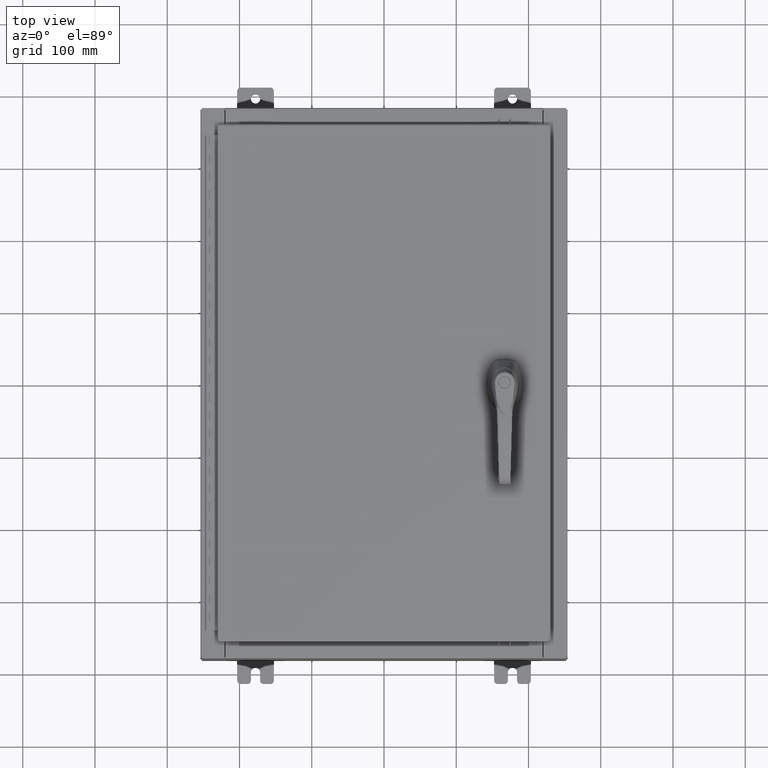
[diagram: clean part render]
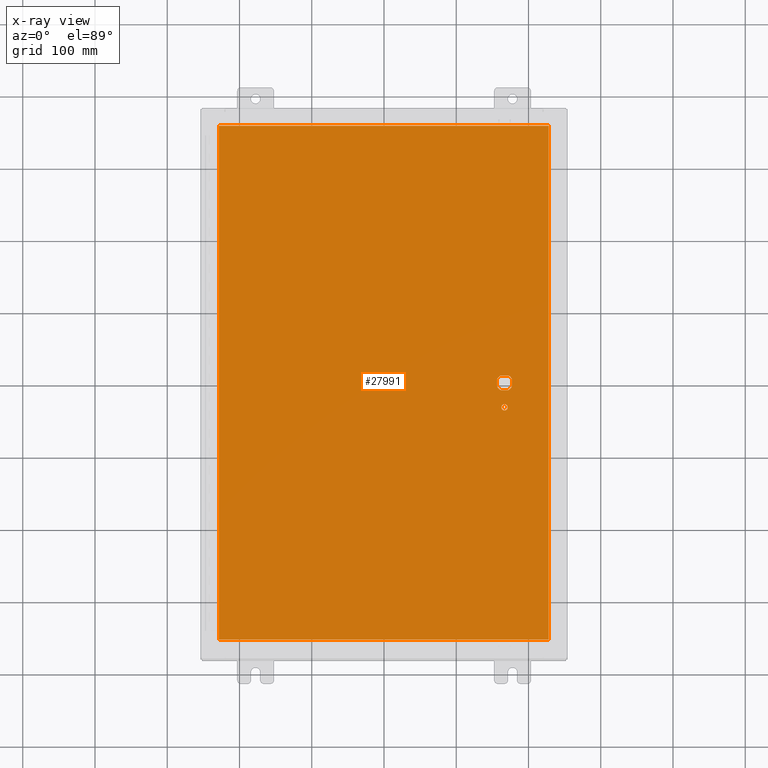
[diagram: x-ray — body ghosted, one internal face saturated and labeled with its STEP entity id]
A machine part, top view, then the same camera in x-ray: the body is ghosted and one INTERNAL B-rep face — a face not visible from any outside direction — is saturated and labeled: STEP entity #27991.
In plain terms, the highlighted planar face has unit normal (0, 0, -1).
Its self-contained STEP definition (entity closure, byte-faithful):
#916 = DIRECTION ( 'NONE',  ( 0.0000000000000000000, -1.000000000000000000, 0.0000000000000000000 ) ) ;
#1204 = DIRECTION ( 'NONE',  ( 1.000000000000000000, 0.0000000000000000000, 0.0000000000000000000 ) ) ;
#1661 = DIRECTION ( 'NONE',  ( -1.000000000000000000, 0.0000000000000000000, 0.0000000000000000000 ) ) ;
#2209 = ORIENTED_EDGE ( 'NONE', *, *, #94681, .F. ) ;
#2816 = DIRECTION ( 'NONE',  ( -1.000000000000000000, 0.0000000000000000000, 0.0000000000000000000 ) ) ;
#3193 = CARTESIAN_POINT ( 'NONE',  ( 0.0000000000000000000, 0.0000000000000000000, -0.07470000000000000300 ) ) ;
#3531 = ORIENTED_EDGE ( 'NONE', *, *, #54065, .T. ) ;
#4511 = ORIENTED_EDGE ( 'NONE', *, *, #87021, .F. ) ;
#5909 = EDGE_CURVE ( 'NONE', #68098, #42165, #76077, .T. ) ;
#6597 = VECTOR ( 'NONE', #113602, 39.37007874015748100 ) ;
#7040 = DIRECTION ( 'NONE',  ( -1.000000000000000000, 0.0000000000000000000, 0.0000000000000000000 ) ) ;
#8188 = CARTESIAN_POINT ( 'NONE',  ( 6.778227370756310300, -0.4029999999999252000, -0.07470000000000003000 ) ) ;
#9004 = VERTEX_POINT ( 'NONE', #109137 ) ;
#9499 = ORIENTED_EDGE ( 'NONE', *, *, #5909, .T. ) ;
#10349 = DIRECTION ( 'NONE',  ( 1.000000000000000000, -0.0000000000000000000, -0.0000000000000000000 ) ) ;
#11492 = LINE ( 'NONE', #16137, #32643 ) ;
#12333 = DIRECTION ( 'NONE',  ( -1.000000000000000000, 0.0000000000000000000, -0.0000000000000000000 ) ) ;
#13306 = EDGE_CURVE ( 'NONE', #61766, #82912, #67131, .T. ) ;
#13430 = LINE ( 'NONE', #80388, #82634 ) ;
#15600 = CARTESIAN_POINT ( 'NONE',  ( 6.980999999999926200, 0.2002273707563080300, -0.07470000000000003000 ) ) ;
#16137 = CARTESIAN_POINT ( 'NONE',  ( 0.0000000000000000000, 0.4029999999999252000, -0.07470000000000003000 ) ) ;
#17065 = EDGE_CURVE ( 'NONE', #82912, #61766, #41158, .T. ) ;
#20267 = VERTEX_POINT ( 'NONE', #116482 ) ;
#20957 = ORIENTED_EDGE ( 'NONE', *, *, #107210, .F. ) ;
#21228 = ORIENTED_EDGE ( 'NONE', *, *, #17065, .T. ) ;
#21521 = CARTESIAN_POINT ( 'NONE',  ( -8.990299999999997700, 14.00629999999999800, -0.07470000000000000300 ) ) ;
#22120 = CIRCLE ( 'NONE', #99429, 0.4499999999999156900 ) ;
#23146 = VECTOR ( 'NONE', #10349, 39.37007874015748100 ) ;
#24656 = CARTESIAN_POINT ( 'NONE',  ( 6.578000000000000300, 0.0000000000000000000, -0.07470000000000003000 ) ) ;
#24731 = ORIENTED_EDGE ( 'NONE', *, *, #65998, .F. ) ;
#24972 = AXIS2_PLACEMENT_3D ( 'NONE', #110025, #55775, #1661 ) ;
#26278 = DIRECTION ( 'NONE',  ( 0.0000000000000000000, 1.000000000000000000, 0.0000000000000000000 ) ) ;
#27511 = VECTOR ( 'NONE', #54738, 39.37007874015748100 ) ;
#27751 = EDGE_CURVE ( 'NONE', #42165, #48963, #114261, .T. ) ;
#27991 = ADVANCED_FACE ( 'NONE', ( #97197, #70306, #94341 ), #111535, .T. ) ;
#28517 = CARTESIAN_POINT ( 'NONE',  ( 0.0000000000000000000, -0.4029999999999252000, -0.07470000000000003000 ) ) ;
#30124 = CARTESIAN_POINT ( 'NONE',  ( -8.990299999999996000, -14.00629999999999600, -0.07470000000000000300 ) ) ;
#30254 = EDGE_CURVE ( 'NONE', #20267, #9004, #30445, .T. ) ;
#30288 = CARTESIAN_POINT ( 'NONE',  ( 6.980999999999926200, -0.2002273707563080300, -0.07470000000000003000 ) ) ;
#30445 = CIRCLE ( 'NONE', #24972, 0.4499999999999156900 ) ;
#30882 = CARTESIAN_POINT ( 'NONE',  ( -8.990299999999997700, 14.00630000000000100, -0.07470000000000019700 ) ) ;
#31650 = CARTESIAN_POINT ( 'NONE',  ( 6.749500000000001200, -1.338000000000000100, -0.07470000000000003000 ) ) ;
#32392 = EDGE_LOOP ( 'NONE', ( #107279, #2209, #114384, #3531, #104298, #48033, #72788, #9499 ) ) ;
#32643 = VECTOR ( 'NONE', #7040, 39.37007874015748100 ) ;
#33729 = DIRECTION ( 'NONE',  ( -1.000000000000000000, 8.881784197001256300E-016, 0.0000000000000000000 ) ) ;
#33848 = ORIENTED_EDGE ( 'NONE', *, *, #50664, .F. ) ;
#34784 = CARTESIAN_POINT ( 'NONE',  ( 8.990299999999999500, 14.00629999999999800, -0.07470000000000000300 ) ) ;
#37198 = CARTESIAN_POINT ( 'NONE',  ( -8.990299999999996000, -14.00629999999999800, -0.07469999999999800400 ) ) ;
#37305 = CARTESIAN_POINT ( 'NONE',  ( 6.175000000000075300, -0.2002273707563079800, -0.07470000000000003000 ) ) ;
#39159 = DIRECTION ( 'NONE',  ( 0.0000000000000000000, 0.0000000000000000000, -1.000000000000000000 ) ) ;
#39262 = VECTOR ( 'NONE', #916, 39.37007874015748100 ) ;
#40786 = CARTESIAN_POINT ( 'NONE',  ( 6.406500000000000300, -1.338000000000000100, -0.07470000000000003000 ) ) ;
#41074 = CARTESIAN_POINT ( 'NONE',  ( 6.578000000000000300, -1.338000000000000100, -0.07470000000000003000 ) ) ;
#41158 = CIRCLE ( 'NONE', #74300, 0.1715000000000000700 ) ;
#42165 = VERTEX_POINT ( 'NONE', #8188 ) ;
#44610 = CARTESIAN_POINT ( 'NONE',  ( 6.578000000000000300, 0.0000000000000000000, -0.07470000000000003000 ) ) ;
#45760 = VECTOR ( 'NONE', #112314, 39.37007874015748100 ) ;
#46193 = CARTESIAN_POINT ( 'NONE',  ( 6.578000000000000300, -1.338000000000000100, -0.07470000000000003000 ) ) ;
#46349 = CARTESIAN_POINT ( 'NONE',  ( 6.980999999999926200, 0.0000000000000000000, -0.07470000000000003000 ) ) ;
#48033 = ORIENTED_EDGE ( 'NONE', *, *, #111639, .T. ) ;
#48963 = VERTEX_POINT ( 'NONE', #30288 ) ;
#50126 = DIRECTION ( 'NONE',  ( -1.000000000000000000, 0.0000000000000000000, 0.0000000000000000000 ) ) ;
#50266 = CARTESIAN_POINT ( 'NONE',  ( 8.990300000000001300, 14.00629999999999800, -0.07470000000000019700 ) ) ;
#50664 = EDGE_CURVE ( 'NONE', #95410, #92363, #69825, .T. ) ;
#51983 = VECTOR ( 'NONE', #1204, 39.37007874015748100 ) ;
#53657 = DIRECTION ( 'NONE',  ( -1.000000000000000000, 0.0000000000000000000, 0.0000000000000000000 ) ) ;
#54065 = EDGE_CURVE ( 'NONE', #80879, #20267, #11492, .T. ) ;
#54738 = DIRECTION ( 'NONE',  ( 0.0000000000000000000, -1.000000000000000000, 0.0000000000000000000 ) ) ;
#55272 = DIRECTION ( 'NONE',  ( -1.000000000000000000, 0.0000000000000000000, 0.0000000000000000000 ) ) ;
#55775 = DIRECTION ( 'NONE',  ( -0.0000000000000000000, -0.0000000000000000000, 1.000000000000000000 ) ) ;
#56938 = DIRECTION ( 'NONE',  ( -0.0000000000000000000, -0.0000000000000000000, 1.000000000000000000 ) ) ;
#57694 = CARTESIAN_POINT ( 'NONE',  ( 6.377772629243691100, -0.4029999999999250300, -0.07470000000000003000 ) ) ;
#61562 = EDGE_LOOP ( 'NONE', ( #90191, #21228 ) ) ;
#61766 = VERTEX_POINT ( 'NONE', #31650 ) ;
#65998 = EDGE_CURVE ( 'NONE', #107505, #95410, #84349, .T. ) ;
#66135 = EDGE_CURVE ( 'NONE', #80646, #68098, #22120, .T. ) ;
#67131 = CIRCLE ( 'NONE', #74122, 0.1715000000000000700 ) ;
#68098 = VERTEX_POINT ( 'NONE', #57694 ) ;
#68349 = LINE ( 'NONE', #37198, #23146 ) ;
#69825 = LINE ( 'NONE', #30882, #45760 ) ;
#70174 = VERTEX_POINT ( 'NONE', #15600 ) ;
#70306 = FACE_OUTER_BOUND ( 'NONE', #80832, .T. ) ;
#72788 = ORIENTED_EDGE ( 'NONE', *, *, #66135, .T. ) ;
#74122 = AXIS2_PLACEMENT_3D ( 'NONE', #46193, #109521, #55272 ) ;
#74300 = AXIS2_PLACEMENT_3D ( 'NONE', #41074, #104343, #50126 ) ;
#76077 = LINE ( 'NONE', #28517, #51983 ) ;
#79927 = CARTESIAN_POINT ( 'NONE',  ( 8.990300000000001300, -14.00629999999999800, -0.07470000000000000300 ) ) ;
#80388 = CARTESIAN_POINT ( 'NONE',  ( 8.990300000000001300, -14.00629999999999800, -0.07470000000000076600 ) ) ;
#80646 = VERTEX_POINT ( 'NONE', #37305 ) ;
#80832 = EDGE_LOOP ( 'NONE', ( #4511, #20957, #33848, #24731 ) ) ;
#80879 = VERTEX_POINT ( 'NONE', #94158 ) ;
#82634 = VECTOR ( 'NONE', #26278, 39.37007874015748100 ) ;
#82912 = VERTEX_POINT ( 'NONE', #40786 ) ;
#84349 = LINE ( 'NONE', #50266, #6597 ) ;
#84521 = EDGE_CURVE ( 'NONE', #70174, #80879, #104216, .T. ) ;
#86874 = AXIS2_PLACEMENT_3D ( 'NONE', #111169, #56938, #2816 ) ;
#87021 = EDGE_CURVE ( 'NONE', #106794, #107505, #13430, .T. ) ;
#87837 = DIRECTION ( 'NONE',  ( -0.0000000000000000000, -0.0000000000000000000, 1.000000000000000000 ) ) ;
#90191 = ORIENTED_EDGE ( 'NONE', *, *, #13306, .T. ) ;
#90228 = AXIS2_PLACEMENT_3D ( 'NONE', #44610, #107913, #53657 ) ;
#92363 = VERTEX_POINT ( 'NONE', #30124 ) ;
#94158 = CARTESIAN_POINT ( 'NONE',  ( 6.778227370756310300, 0.4029999999999250300, -0.07470000000000003000 ) ) ;
#94341 = FACE_BOUND ( 'NONE', #32392, .T. ) ;
#94681 = EDGE_CURVE ( 'NONE', #70174, #48963, #95826, .T. ) ;
#95410 = VERTEX_POINT ( 'NONE', #21521 ) ;
#95826 = LINE ( 'NONE', #46349, #39262 ) ;
#96774 = LINE ( 'NONE', #109004, #27511 ) ;
#97197 = FACE_BOUND ( 'NONE', #61562, .T. ) ;
#99429 = AXIS2_PLACEMENT_3D ( 'NONE', #24656, #87837, #33729 ) ;
#104216 = CIRCLE ( 'NONE', #90228, 0.4499999999999156900 ) ;
#104298 = ORIENTED_EDGE ( 'NONE', *, *, #30254, .T. ) ;
#104343 = DIRECTION ( 'NONE',  ( -0.0000000000000000000, -0.0000000000000000000, 1.000000000000000000 ) ) ;
#106794 = VERTEX_POINT ( 'NONE', #79927 ) ;
#107210 = EDGE_CURVE ( 'NONE', #92363, #106794, #68349, .T. ) ;
#107279 = ORIENTED_EDGE ( 'NONE', *, *, #27751, .T. ) ;
#107505 = VERTEX_POINT ( 'NONE', #34784 ) ;
#107913 = DIRECTION ( 'NONE',  ( -0.0000000000000000000, -0.0000000000000000000, 1.000000000000000000 ) ) ;
#109004 = CARTESIAN_POINT ( 'NONE',  ( 6.175000000000075300, 0.0000000000000000000, -0.07470000000000003000 ) ) ;
#109137 = CARTESIAN_POINT ( 'NONE',  ( 6.175000000000075300, 0.2002273707563080300, -0.07470000000000003000 ) ) ;
#109521 = DIRECTION ( 'NONE',  ( -0.0000000000000000000, -0.0000000000000000000, 1.000000000000000000 ) ) ;
#110025 = CARTESIAN_POINT ( 'NONE',  ( 6.578000000000000300, 0.0000000000000000000, -0.07470000000000003000 ) ) ;
#111169 = CARTESIAN_POINT ( 'NONE',  ( 6.578000000000000300, 0.0000000000000000000, -0.07470000000000003000 ) ) ;
#111535 = PLANE ( 'NONE',  #115032 ) ;
#111639 = EDGE_CURVE ( 'NONE', #9004, #80646, #96774, .T. ) ;
#112314 = DIRECTION ( 'NONE',  ( 0.0000000000000000000, -1.000000000000000000, 0.0000000000000000000 ) ) ;
#113602 = DIRECTION ( 'NONE',  ( -1.000000000000000000, -0.0000000000000000000, -0.0000000000000000000 ) ) ;
#114261 = CIRCLE ( 'NONE', #86874, 0.4499999999999156900 ) ;
#114384 = ORIENTED_EDGE ( 'NONE', *, *, #84521, .T. ) ;
#115032 = AXIS2_PLACEMENT_3D ( 'NONE', #3193, #39159, #12333 ) ;
#116482 = CARTESIAN_POINT ( 'NONE',  ( 6.377772629243691100, 0.4029999999999252000, -0.07470000000000003000 ) ) ;